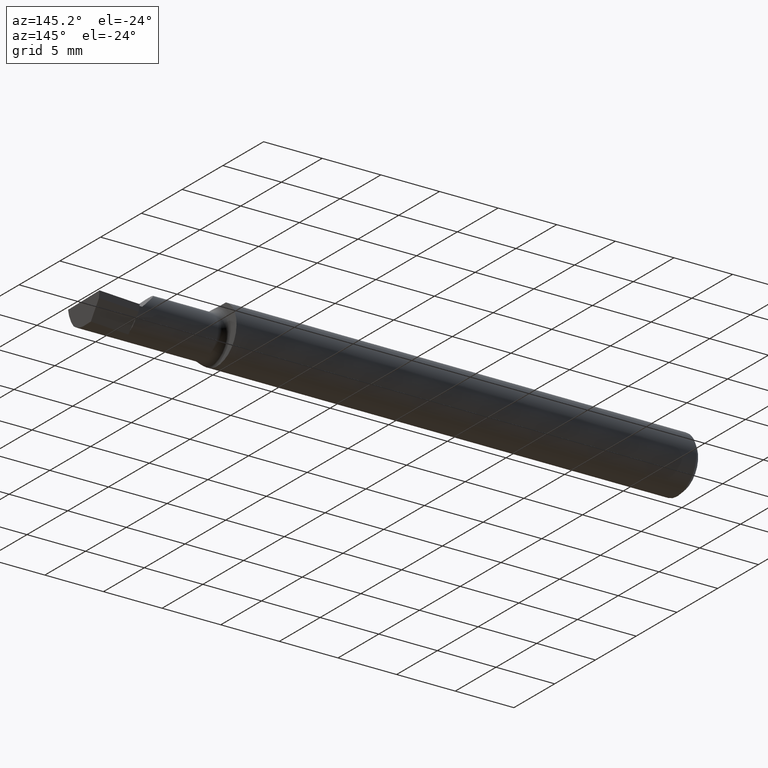
[diagram: clean part render]
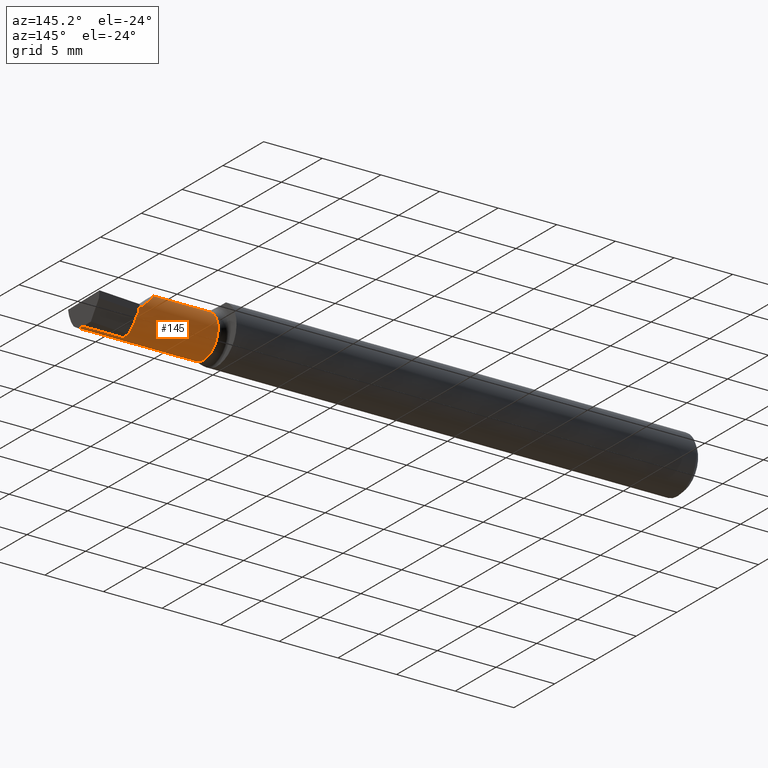
[diagram: same view with one face highlighted and labeled with its STEP entity id]
A machine part, auxiliary view. The second image highlights one B-rep face of the part: STEP entity #145.
In plain terms, the highlighted cylindrical surface (edge-blend (fillet) strip) has radius 1.8034 mm, axis along (-1, -0, -0).
Its self-contained STEP definition (entity closure, byte-faithful):
#2 = CARTESIAN_POINT ( 'NONE',  ( 1.854999999999999982, -0.03060000000000022424, 0.000000000000000000 ) ) ;
#4 = VERTEX_POINT ( 'NONE', #325 ) ;
#5 = LINE ( 'NONE', #428, #269 ) ;
#11 = CARTESIAN_POINT ( 'NONE',  ( 1.840000000000000080, 0.04039999999999989433, 1.959434878635762025E-17 ) ) ;
#22 = EDGE_CURVE ( 'NONE', #503, #380, #521, .T. ) ;
#25 = VERTEX_POINT ( 'NONE', #280 ) ;
#40 = CARTESIAN_POINT ( 'NONE',  ( 1.988791645263412011, -0.03060000000000022424, -0.07100000000000021572 ) ) ;
#44 = CARTESIAN_POINT ( 'NONE',  ( 0.000000000000000000, -0.03060000000000023118, 0.000000000000000000 ) ) ;
#46 = DIRECTION ( 'NONE',  ( 1.000000000000000000, 4.268512490100411279E-18, 0.000000000000000000 ) ) ;
#50 = CARTESIAN_POINT ( 'NONE',  ( 1.584999999999999964, -0.03060000000000022424, 0.000000000000000000 ) ) ;
#60 = VERTEX_POINT ( 'NONE', #483 ) ;
#63 = ORIENTED_EDGE ( 'NONE', *, *, #252, .F. ) ;
#70 = VERTEX_POINT ( 'NONE', #11 ) ;
#72 = CARTESIAN_POINT ( 'NONE',  ( 1.988641161029047311, -0.06318680184005830147, -0.06527786071030769466 ) ) ;
#77 = ORIENTED_EDGE ( 'NONE', *, *, #358, .T. ) ;
#145 = ADVANCED_FACE ( 'NONE', ( #531 ), #343, .T. ) ;
#149 = CIRCLE ( 'NONE', #507, 0.07100000000000017408 ) ;
#152 = DIRECTION ( 'NONE',  ( -1.000000000000000000, 5.691349986800549142E-18, -0.000000000000000000 ) ) ;
#154 = CARTESIAN_POINT ( 'NONE',  ( -3.030643867965640675E-19, 0.04039999999999995678, 1.030335658007946046E-15 ) ) ;
#155 = ORIENTED_EDGE ( 'NONE', *, *, #583, .T. ) ;
#158 = EDGE_CURVE ( 'NONE', #25, #60, #260, .T. ) ;
#161 = LINE ( 'NONE', #263, #169 ) ;
#169 = VECTOR ( 'NONE', #152, 39.37007874015748143 ) ;
#178 = DIRECTION ( 'NONE',  ( -1.000000000000000000, -4.268512490100411279E-18, -0.000000000000000000 ) ) ;
#184 = EDGE_CURVE ( 'NONE', #4, #271, #149, .T. ) ;
#189 = CARTESIAN_POINT ( 'NONE',  ( 1.770398118553869304, 0.04039999999999996372, 0.06960188144613037309 ) ) ;
#192 = CARTESIAN_POINT ( 'NONE',  ( 1.854999999999999982, 0.03291555154404722516, -0.03172971339384390160 ) ) ;
#193 = DIRECTION ( 'NONE',  ( -1.000000000000000000, -4.268512490100411279E-18, -0.000000000000000000 ) ) ;
#226 = ORIENTED_EDGE ( 'NONE', *, *, #564, .T. ) ;
#236 = DIRECTION ( 'NONE',  ( -1.000000000000000000, -4.268512490100411279E-18, -0.000000000000000000 ) ) ;
#238 = DIRECTION ( 'NONE',  ( 1.000000000000000000, 4.268512490100411279E-18, 0.000000000000000000 ) ) ;
#243 = CARTESIAN_POINT ( 'NONE',  ( 1.854999999999999982, 0.04039999999999999841, 1.030335658007946440E-15 ) ) ;
#252 = EDGE_CURVE ( 'NONE', #503, #60, #161, .T. ) ;
#257 = EDGE_CURVE ( 'NONE', #70, #577, #356, .T. ) ;
#260 = CIRCLE ( 'NONE', #614, 0.07100000000000021572 ) ;
#263 = CARTESIAN_POINT ( 'NONE',  ( 2.000000000000000000, -0.03060000000000022424, -0.07100000000000021572 ) ) ;
#264 = ORIENTED_EDGE ( 'NONE', *, *, #158, .T. ) ;
#269 = VECTOR ( 'NONE', #238, 39.37007874015748143 ) ;
#270 = CARTESIAN_POINT ( 'NONE',  ( 1.989625015145392917, -0.07608366013071821143, -0.05451822320209420702 ) ) ;
#271 = VERTEX_POINT ( 'NONE', #396 ) ;
#280 = CARTESIAN_POINT ( 'NONE',  ( 1.854999999999999982, 0.003039038829300824175, -0.06252531540616809713 ) ) ;
#291 = DIRECTION ( 'NONE',  ( 0.000000000000000000, -1.000000000000000000, 0.000000000000000000 ) ) ;
#298 = EDGE_CURVE ( 'NONE', #577, #456, #361, .T. ) ;
#302 = CARTESIAN_POINT ( 'NONE',  ( 1.854999999999999982, -0.03060000000000022424, 0.000000000000000000 ) ) ;
#309 = CIRCLE ( 'NONE', #506, 0.07100000000000020184 ) ;
#313 = CARTESIAN_POINT ( 'NONE',  ( 1.719999999999999973, -0.07608366013071821143, -0.05451822320209420702 ) ) ;
#325 = CARTESIAN_POINT ( 'NONE',  ( 1.584999999999999964, -0.07608366013071794776, 0.05451822320209439438 ) ) ;
#343 = CYLINDRICAL_SURFACE ( 'NONE', #529, 0.07100000000000020184 ) ;
#345 = DIRECTION ( 'NONE',  ( 1.000000000000000000, 4.268512490100411279E-18, 0.000000000000000000 ) ) ;
#353 = DIRECTION ( 'NONE',  ( 0.000000000000000000, -1.000000000000000000, 0.000000000000000000 ) ) ;
#356 = LINE ( 'NONE', #154, #497 ) ;
#358 = EDGE_CURVE ( 'NONE', #380, #271, #370, .T. ) ;
#361 = CIRCLE ( 'NONE', #624, 0.07100000000000021572 ) ;
#365 = ORIENTED_EDGE ( 'NONE', *, *, #257, .T. ) ;
#370 = LINE ( 'NONE', #313, #584 ) ;
#377 = ORIENTED_EDGE ( 'NONE', *, *, #184, .F. ) ;
#380 = VERTEX_POINT ( 'NONE', #270 ) ;
#392 = DIRECTION ( 'NONE',  ( -1.000000000000000000, -4.268512490100411279E-18, -0.000000000000000000 ) ) ;
#395 = CARTESIAN_POINT ( 'NONE',  ( 1.785481776797905207, -0.07608366013071832246, 0.05451822320209408906 ) ) ;
#396 = CARTESIAN_POINT ( 'NONE',  ( 1.584999999999999964, -0.07608366013071804490, -0.05451822320209432499 ) ) ;
#397 = ORIENTED_EDGE ( 'NONE', *, *, #298, .T. ) ;
#425 = ORIENTED_EDGE ( 'NONE', *, *, #597, .F. ) ;
#428 = CARTESIAN_POINT ( 'NONE',  ( 1.719999999999999973, -0.07608366013071821143, 0.05451822320209420702 ) ) ;
#456 = VERTEX_POINT ( 'NONE', #192 ) ;
#482 = CARTESIAN_POINT ( 'NONE',  ( 1.840000000000000080, 0.04039999999999989433, 1.959434878635762025E-17 ) ) ;
#483 = CARTESIAN_POINT ( 'NONE',  ( 1.854999999999999982, -0.03060000000000022424, -0.07100000000000021572 ) ) ;
#487 = CARTESIAN_POINT ( 'NONE',  ( 1.785481776797905207, -0.07608366013071832246, 0.05451822320209408906 ) ) ;
#497 = VECTOR ( 'NONE', #345, 39.37007874015748143 ) ;
#503 = VERTEX_POINT ( 'NONE', #573 ) ;
#506 = AXIS2_PLACEMENT_3D ( 'NONE', #626, #46, #621 ) ;
#507 = AXIS2_PLACEMENT_3D ( 'NONE', #50, #392, #587 ) ;
#512 = CARTESIAN_POINT ( 'NONE',  ( 1.988351831874612285, -0.04739579569646895640, -0.07100000000000018796 ) ) ;
#519 = ORIENTED_EDGE ( 'NONE', *, *, #22, .T. ) ;
#521 =( BOUNDED_CURVE ( )  B_SPLINE_CURVE ( 3, ( #40, #512, #72, #540 ),
 .UNSPECIFIED., .F., .T. ) 
 B_SPLINE_CURVE_WITH_KNOTS ( ( 4, 4 ),
 ( 6.073135862899447623, 6.768434696801359785 ),
 .UNSPECIFIED. ) 
 CURVE ( )  GEOMETRIC_REPRESENTATION_ITEM ( )  RATIONAL_B_SPLINE_CURVE ( ( 1.000000000000000000, 0.9601174178332941844, 0.9601174178332941844, 1.000000000000000000 ) ) 
 REPRESENTATION_ITEM ( '' )  );
#529 = AXIS2_PLACEMENT_3D ( 'NONE', #44, #236, #623 ) ;
#531 = FACE_OUTER_BOUND ( 'NONE', #557, .T. ) ;
#540 = CARTESIAN_POINT ( 'NONE',  ( 1.989625015145392917, -0.07608366013071821143, -0.05451822320209420702 ) ) ;
#555 = DIRECTION ( 'NONE',  ( -1.000000000000000000, -4.268512490100411279E-18, -0.000000000000000000 ) ) ;
#557 = EDGE_LOOP ( 'NONE', ( #63, #519, #77, #377, #155, #226, #365, #397, #425, #264 ) ) ;
#564 = EDGE_CURVE ( 'NONE', #619, #70, #622, .T. ) ;
#573 = CARTESIAN_POINT ( 'NONE',  ( 1.988791645263412011, -0.03060000000000022424, -0.07100000000000021572 ) ) ;
#577 = VERTEX_POINT ( 'NONE', #243 ) ;
#583 = EDGE_CURVE ( 'NONE', #4, #619, #5, .T. ) ;
#584 = VECTOR ( 'NONE', #178, 39.37007874015748143 ) ;
#587 = DIRECTION ( 'NONE',  ( 0.000000000000000000, -1.000000000000000000, 0.000000000000000000 ) ) ;
#597 = EDGE_CURVE ( 'NONE', #25, #456, #309, .T. ) ;
#614 = AXIS2_PLACEMENT_3D ( 'NONE', #2, #193, #291 ) ;
#618 = CARTESIAN_POINT ( 'NONE',  ( 1.740893772288688801, -0.02263899945514348880, 0.09910622771130987718 ) ) ;
#619 = VERTEX_POINT ( 'NONE', #395 ) ;
#621 = DIRECTION ( 'NONE',  ( 0.000000000000000000, -1.000000000000000000, -1.776356839400250465E-15 ) ) ;
#622 =( BOUNDED_CURVE ( )  B_SPLINE_CURVE ( 3, ( #487, #618, #189, #482 ),
 .UNSPECIFIED., .F., .F. ) 
 B_SPLINE_CURVE_WITH_KNOTS ( ( 4, 4 ),
 ( 5.587886473277671406, 7.853981633974482790 ),
 .UNSPECIFIED. ) 
 CURVE ( )  GEOMETRIC_REPRESENTATION_ITEM ( )  RATIONAL_B_SPLINE_CURVE ( ( 1.000000000000000000, 0.6159343746860725943, 0.6159343746860725943, 1.000000000000000000 ) ) 
 REPRESENTATION_ITEM ( '' )  );
#623 = DIRECTION ( 'NONE',  ( 4.268512490100411279E-18, -1.000000000000000000, 0.000000000000000000 ) ) ;
#624 = AXIS2_PLACEMENT_3D ( 'NONE', #302, #555, #353 ) ;
#626 = CARTESIAN_POINT ( 'NONE',  ( 1.854999999999999982, -0.03060000000000022424, 0.000000000000000000 ) ) ;